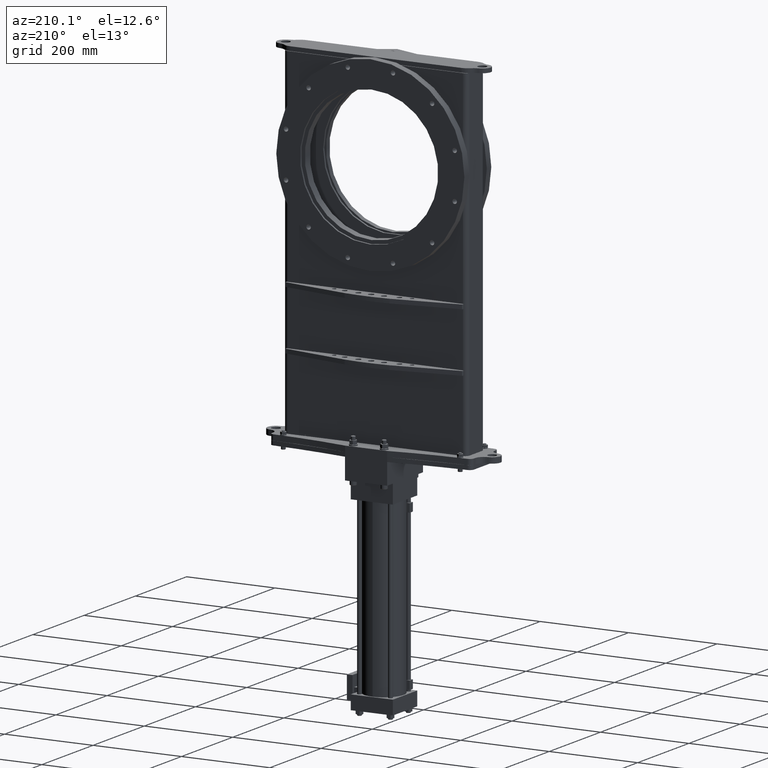
[diagram: clean part render]
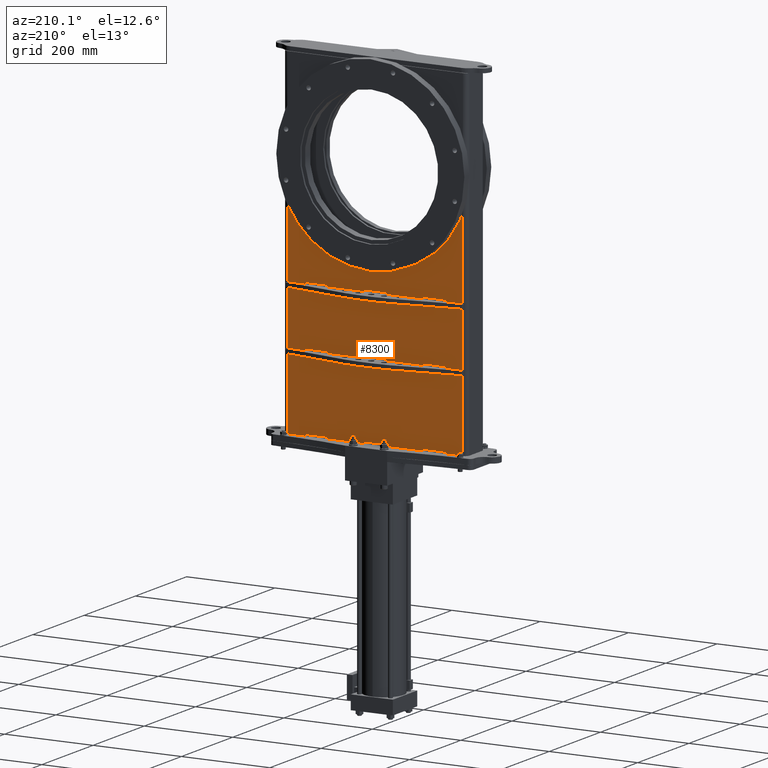
[diagram: same view with one face highlighted and labeled with its STEP entity id]
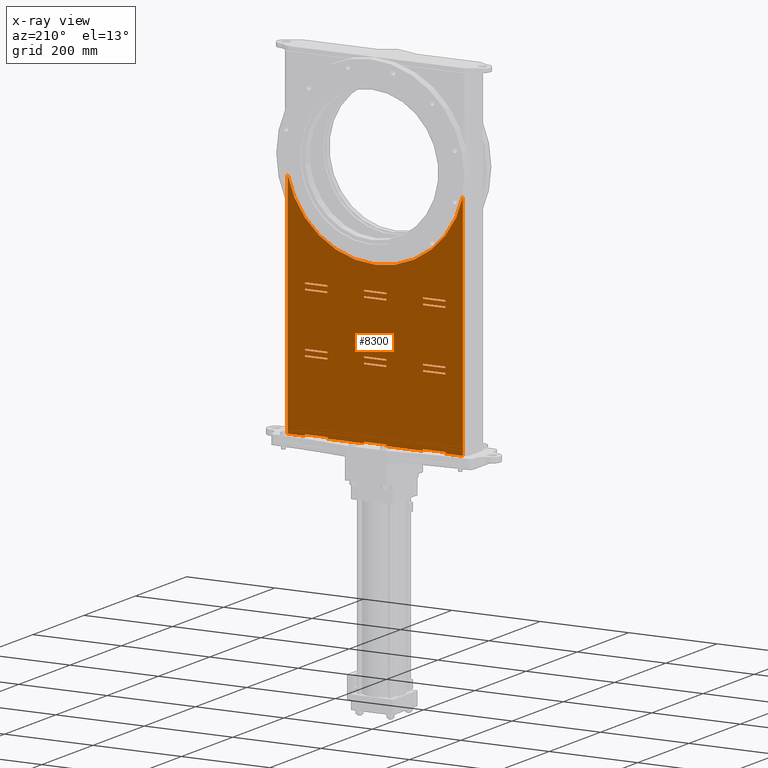
[diagram: x-ray of the same camera — body ghosted, the highlighted face saturated]
A machine part, auxiliary view. The second image highlights one B-rep face of the part: STEP entity #8300.
The next image is the same camera in x-ray: the body ghosted, the highlighted face saturated — about 0% of this face is hidden behind the body in this view.
In plain terms, the highlighted planar face has unit normal (0, -1, 0).
Its self-contained STEP definition (entity closure, byte-faithful):
#117 = VECTOR ( 'NONE', #12557, 39.37007874015748100 ) ;
#125 = EDGE_CURVE ( 'NONE', #15869, #6076, #1041, .T. ) ;
#191 = EDGE_CURVE ( 'NONE', #6166, #7435, #11773, .T. ) ;
#196 = DIRECTION ( 'NONE',  ( 1.000000000000000000, -0.0000000000000000000, 0.0000000000000000000 ) ) ;
#215 = PLANE ( 'NONE',  #24419 ) ;
#243 = EDGE_CURVE ( 'NONE', #10395, #24396, #17137, .T. ) ;
#276 = EDGE_CURVE ( 'NONE', #8509, #25032, #10188, .T. ) ;
#301 = VERTEX_POINT ( 'NONE', #19083 ) ;
#323 = LINE ( 'NONE', #25758, #17695 ) ;
#389 = CARTESIAN_POINT ( 'NONE',  ( 4.249999999999999100, -0.4376000000000041000, -1.859999999999999200 ) ) ;
#412 = FACE_BOUND ( 'NONE', #5181, .T. ) ;
#447 = CARTESIAN_POINT ( 'NONE',  ( -6.206000441006788100E-016, -0.4376000000000041000, -10.71999999999999900 ) ) ;
#464 = CARTESIAN_POINT ( 'NONE',  ( 4.249999999999999100, -0.4376000000000041000, -10.71999999999999900 ) ) ;
#543 = LINE ( 'NONE', #16256, #9052 ) ;
#566 = LINE ( 'NONE', #3291, #18547 ) ;
#599 = CARTESIAN_POINT ( 'NONE',  ( -5.932625053149104600E-017, -0.4376000000000039900, -15.34499999999999500 ) ) ;
#681 = VERTEX_POINT ( 'NONE', #8884 ) ;
#699 = CARTESIAN_POINT ( 'NONE',  ( 4.249999999999998200, -0.4376000000000039900, -15.84499999999999900 ) ) ;
#729 = CARTESIAN_POINT ( 'NONE',  ( 0.9999999999999992200, -0.4376000000000039900, -10.59499999999999700 ) ) ;
#1006 = ORIENTED_EDGE ( 'NONE', *, *, #12178, .T. ) ;
#1041 = LINE ( 'NONE', #8496, #22470 ) ;
#1165 = EDGE_CURVE ( 'NONE', #23593, #21594, #18341, .T. ) ;
#1229 = LINE ( 'NONE', #2977, #23595 ) ;
#1318 = ORIENTED_EDGE ( 'NONE', *, *, #191, .F. ) ;
#1367 = LINE ( 'NONE', #5889, #15263 ) ;
#1427 = VECTOR ( 'NONE', #2709, 39.37007874015748100 ) ;
#1504 = EDGE_CURVE ( 'NONE', #16864, #12687, #10121, .T. ) ;
#1516 = ORIENTED_EDGE ( 'NONE', *, *, #10866, .F. ) ;
#1528 = CARTESIAN_POINT ( 'NONE',  ( -5.932625053149104600E-017, -0.4376000000000039900, -15.84499999999999700 ) ) ;
#1557 = LINE ( 'NONE', #5980, #6622 ) ;
#1594 = EDGE_CURVE ( 'NONE', #23845, #16864, #4767, .T. ) ;
#1607 = CARTESIAN_POINT ( 'NONE',  ( 1.000000000000000000, -0.4376000000000039900, -15.96999999999999900 ) ) ;
#1669 = ORIENTED_EDGE ( 'NONE', *, *, #3524, .F. ) ;
#1705 = CARTESIAN_POINT ( 'NONE',  ( 6.249999999999999100, -0.4376000000000039900, -10.09499999999999500 ) ) ;
#1716 = VERTEX_POINT ( 'NONE', #16973 ) ;
#1841 = LINE ( 'NONE', #17411, #26088 ) ;
#1860 = VECTOR ( 'NONE', #2690, 39.37007874015748100 ) ;
#1907 = EDGE_CURVE ( 'NONE', #25324, #4437, #24894, .T. ) ;
#1915 = CARTESIAN_POINT ( 'NONE',  ( -1.000000000000000000, -0.4376000000000039900, -13.85999999999999900 ) ) ;
#1922 = CARTESIAN_POINT ( 'NONE',  ( -1.000000000000000000, -0.4376000000000039900, -7.109999999999999400 ) ) ;
#1935 = LINE ( 'NONE', #24238, #16774 ) ;
#1940 = EDGE_CURVE ( 'NONE', #17908, #6076, #3481, .T. ) ;
#1957 = CARTESIAN_POINT ( 'NONE',  ( 4.250000000000000000, -0.4376000000000039900, -15.34499999999999500 ) ) ;
#1982 = CARTESIAN_POINT ( 'NONE',  ( -7.799999999999999800, -0.4376000000000039900, 8.000000000000000000 ) ) ;
#2159 = DIRECTION ( 'NONE',  ( 0.0000000000000000000, 0.0000000000000000000, -1.000000000000000000 ) ) ;
#2196 = EDGE_LOOP ( 'NONE', ( #25806, #11156, #12347, #18559 ) ) ;
#2396 = CARTESIAN_POINT ( 'NONE',  ( -7.799999999999999800, -0.4376000000000039900, -22.21999999999999500 ) ) ;
#2417 = CARTESIAN_POINT ( 'NONE',  ( -1.000000000000000400, -0.4376000000000041000, -1.859999999999999200 ) ) ;
#2502 = ORIENTED_EDGE ( 'NONE', *, *, #7565, .F. ) ;
#2521 = VECTOR ( 'NONE', #9305, 39.37007874015748100 ) ;
#2544 = DIRECTION ( 'NONE',  ( 1.000000000000000000, -0.0000000000000000000, 0.0000000000000000000 ) ) ;
#2580 = CARTESIAN_POINT ( 'NONE',  ( -6.250000000000000000, -0.4376000000000039900, -15.46999999999999700 ) ) ;
#2650 = ORIENTED_EDGE ( 'NONE', *, *, #19316, .T. ) ;
#2667 = ORIENTED_EDGE ( 'NONE', *, *, #25369, .F. ) ;
#2690 = DIRECTION ( 'NONE',  ( 1.000000000000000000, -0.0000000000000000000, 0.0000000000000000000 ) ) ;
#2702 = VECTOR ( 'NONE', #8623, 39.37007874015748100 ) ;
#2705 = VERTEX_POINT ( 'NONE', #19362 ) ;
#2709 = DIRECTION ( 'NONE',  ( 1.000000000000000000, -0.0000000000000000000, 0.0000000000000000000 ) ) ;
#2748 = ORIENTED_EDGE ( 'NONE', *, *, #15088, .F. ) ;
#2751 = LINE ( 'NONE', #19834, #17899 ) ;
#2977 = CARTESIAN_POINT ( 'NONE',  ( 0.9999999999999994400, -0.4376000000000041000, -1.859999999999999200 ) ) ;
#3106 = EDGE_CURVE ( 'NONE', #6264, #15277, #19510, .T. ) ;
#3157 = VERTEX_POINT ( 'NONE', #4802 ) ;
#3164 = ORIENTED_EDGE ( 'NONE', *, *, #4753, .T. ) ;
#3198 = LINE ( 'NONE', #11958, #15838 ) ;
#3233 = CARTESIAN_POINT ( 'NONE',  ( -1.000000000000000000, -0.4376000000000039900, -15.34499999999999500 ) ) ;
#3245 = FACE_BOUND ( 'NONE', #7197, .T. ) ;
#3258 = CARTESIAN_POINT ( 'NONE',  ( -6.250000000000000000, -0.4376000000000039900, -22.09499999999999900 ) ) ;
#3278 = EDGE_CURVE ( 'NONE', #19125, #12229, #25459, .T. ) ;
#3291 = CARTESIAN_POINT ( 'NONE',  ( -6.250000000000001800, -0.4376000000000041000, -1.859999999999999200 ) ) ;
#3348 = CARTESIAN_POINT ( 'NONE',  ( 4.249999999999999100, -0.4376000000000041000, -10.21999999999999700 ) ) ;
#3399 = LINE ( 'NONE', #9550, #21370 ) ;
#3455 = EDGE_CURVE ( 'NONE', #10861, #21594, #3399, .T. ) ;
#3481 = LINE ( 'NONE', #2396, #8188 ) ;
#3490 = EDGE_CURVE ( 'NONE', #14231, #14218, #11297, .T. ) ;
#3524 = EDGE_CURVE ( 'NONE', #5026, #15869, #23560, .T. ) ;
#3636 = EDGE_CURVE ( 'NONE', #8708, #7435, #9381, .T. ) ;
#3682 = DIRECTION ( 'NONE',  ( 0.0000000000000000000, 0.0000000000000000000, -1.000000000000000000 ) ) ;
#3691 = VERTEX_POINT ( 'NONE', #1705 ) ;
#3731 = DIRECTION ( 'NONE',  ( -1.000000000000000000, -0.0000000000000000000, -0.0000000000000000000 ) ) ;
#3837 = CARTESIAN_POINT ( 'NONE',  ( -5.932625053149104600E-017, -0.4376000000000039900, 0.0000000000000000000 ) ) ;
#3871 = CARTESIAN_POINT ( 'NONE',  ( -4.250000000000000000, -0.4376000000000039900, -15.96999999999999900 ) ) ;
#3982 = EDGE_LOOP ( 'NONE', ( #19966, #24036, #6713, #11410 ) ) ;
#4003 = LINE ( 'NONE', #447, #19453 ) ;
#4050 = DIRECTION ( 'NONE',  ( 0.0000000000000000000, 0.0000000000000000000, -1.000000000000000000 ) ) ;
#4079 = EDGE_CURVE ( 'NONE', #6605, #7465, #11612, .T. ) ;
#4103 = ORIENTED_EDGE ( 'NONE', *, *, #21117, .F. ) ;
#4135 = VECTOR ( 'NONE', #24592, 39.37007874015748100 ) ;
#4255 = EDGE_CURVE ( 'NONE', #22049, #7453, #20739, .T. ) ;
#4308 = ORIENTED_EDGE ( 'NONE', *, *, #4313, .F. ) ;
#4313 = EDGE_CURVE ( 'NONE', #14218, #7453, #22316, .T. ) ;
#4359 = EDGE_CURVE ( 'NONE', #7980, #19125, #16974, .T. ) ;
#4398 = EDGE_CURVE ( 'NONE', #18685, #24396, #18521, .T. ) ;
#4400 = CARTESIAN_POINT ( 'NONE',  ( 6.250000000000000000, -0.4376000000000039900, -15.84499999999999700 ) ) ;
#4408 = EDGE_CURVE ( 'NONE', #15700, #13568, #16009, .T. ) ;
#4437 = VERTEX_POINT ( 'NONE', #14983 ) ;
#4443 = DIRECTION ( 'NONE',  ( 0.0000000000000000000, 0.0000000000000000000, -1.000000000000000000 ) ) ;
#4499 = DIRECTION ( 'NONE',  ( 1.000000000000000000, -0.0000000000000000000, 0.0000000000000000000 ) ) ;
#4538 = CARTESIAN_POINT ( 'NONE',  ( -1.000000000000000000, -0.4376000000000039900, -15.46999999999999700 ) ) ;
#4579 = LINE ( 'NONE', #13133, #15022 ) ;
#4590 = CARTESIAN_POINT ( 'NONE',  ( 1.000000000000000000, -0.4376000000000039900, -7.109999999999999400 ) ) ;
#4602 = EDGE_LOOP ( 'NONE', ( #16734, #19374, #16870, #11347, #15020, #22030, #2502, #12605, #23417, #7796, #1318, #12145, #1006, #17830, #13463, #1669 ) ) ;
#4603 = LINE ( 'NONE', #21567, #9324 ) ;
#4629 = DIRECTION ( 'NONE',  ( 0.0000000000000000000, 0.0000000000000000000, -1.000000000000000000 ) ) ;
#4711 = CARTESIAN_POINT ( 'NONE',  ( -1.000000000000000400, -0.4376000000000041000, -10.21999999999999700 ) ) ;
#4753 = EDGE_CURVE ( 'NONE', #13622, #6969, #4003, .T. ) ;
#4767 = LINE ( 'NONE', #2417, #21475 ) ;
#4802 = CARTESIAN_POINT ( 'NONE',  ( -4.250000000000000000, -0.4376000000000039900, -15.84499999999999700 ) ) ;
#4820 = DIRECTION ( 'NONE',  ( 1.000000000000000000, -0.0000000000000000000, 0.0000000000000000000 ) ) ;
#4824 = CARTESIAN_POINT ( 'NONE',  ( 4.249999999999999100, -0.4376000000000041000, -10.09499999999999500 ) ) ;
#4872 = CARTESIAN_POINT ( 'NONE',  ( -4.250000000000000000, -0.4376000000000041000, -1.859999999999999200 ) ) ;
#4896 = DIRECTION ( 'NONE',  ( -1.000000000000000000, -0.0000000000000000000, -0.0000000000000000000 ) ) ;
#4920 = DIRECTION ( 'NONE',  ( 1.000000000000000000, -0.0000000000000000000, 0.0000000000000000000 ) ) ;
#4960 = LINE ( 'NONE', #13936, #19482 ) ;
#5026 = VERTEX_POINT ( 'NONE', #3258 ) ;
#5051 = CARTESIAN_POINT ( 'NONE',  ( -7.799999999999999800, -0.4376000000000039900, -22.21999999999999500 ) ) ;
#5052 = LINE ( 'NONE', #15937, #5690 ) ;
#5181 = EDGE_LOOP ( 'NONE', ( #10955, #18097, #2650, #13233 ) ) ;
#5235 = LINE ( 'NONE', #16181, #17879 ) ;
#5359 = DIRECTION ( 'NONE',  ( 1.000000000000000000, -0.0000000000000000000, 0.0000000000000000000 ) ) ;
#5384 = ORIENTED_EDGE ( 'NONE', *, *, #11090, .T. ) ;
#5402 = LINE ( 'NONE', #1915, #13306 ) ;
#5417 = CARTESIAN_POINT ( 'NONE',  ( -1.000000000000000000, -0.4376000000000039900, -7.109999999999999400 ) ) ;
#5468 = LINE ( 'NONE', #8572, #117 ) ;
#5492 = CARTESIAN_POINT ( 'NONE',  ( -5.932625053149104600E-017, -0.4376000000000039900, -22.09499999999999900 ) ) ;
#5690 = VECTOR ( 'NONE', #23846, 39.37007874015748100 ) ;
#5763 = EDGE_CURVE ( 'NONE', #10787, #13672, #15362, .T. ) ;
#5775 = FACE_BOUND ( 'NONE', #2196, .T. ) ;
#5787 = CARTESIAN_POINT ( 'NONE',  ( 7.799999999999998000, -0.4376000000000042100, -1.777638883463128300 ) ) ;
#5837 = LINE ( 'NONE', #14949, #21249 ) ;
#5889 = CARTESIAN_POINT ( 'NONE',  ( 6.249999999999999100, -0.4376000000000041000, -1.859999999999999200 ) ) ;
#5952 = DIRECTION ( 'NONE',  ( -1.000000000000000000, 3.414809992080329000E-017, 0.0000000000000000000 ) ) ;
#5977 = CARTESIAN_POINT ( 'NONE',  ( -7.799999999999999800, -0.4376000000000039900, -22.21999999999999500 ) ) ;
#5980 = CARTESIAN_POINT ( 'NONE',  ( -6.250000000000000000, -0.4376000000000039900, -7.109999999999999400 ) ) ;
#5993 = EDGE_CURVE ( 'NONE', #3691, #12229, #18159, .T. ) ;
#6073 = ORIENTED_EDGE ( 'NONE', *, *, #21075, .F. ) ;
#6076 = VERTEX_POINT ( 'NONE', #25269 ) ;
#6166 = VERTEX_POINT ( 'NONE', #15028 ) ;
#6189 = DIRECTION ( 'NONE',  ( 0.0000000000000000000, 0.0000000000000000000, -1.000000000000000000 ) ) ;
#6201 = CARTESIAN_POINT ( 'NONE',  ( 1.000000000000000000, -0.4376000000000039900, -15.46999999999999700 ) ) ;
#6228 = VECTOR ( 'NONE', #25870, 39.37007874015748100 ) ;
#6243 = CARTESIAN_POINT ( 'NONE',  ( 6.250000000000000000, -0.4376000000000039900, -7.109999999999999400 ) ) ;
#6250 = VECTOR ( 'NONE', #17146, 39.37007874015748100 ) ;
#6264 = VERTEX_POINT ( 'NONE', #13432 ) ;
#6388 = DIRECTION ( 'NONE',  ( 0.0000000000000000000, 0.0000000000000000000, -1.000000000000000000 ) ) ;
#6470 = CARTESIAN_POINT ( 'NONE',  ( 6.249999999999999100, -0.4376000000000041000, -10.71999999999999900 ) ) ;
#6507 = DIRECTION ( 'NONE',  ( 0.0000000000000000000, 0.0000000000000000000, -1.000000000000000000 ) ) ;
#6513 = CARTESIAN_POINT ( 'NONE',  ( 6.250000000000000000, -0.4376000000000039900, -22.21999999999999500 ) ) ;
#6516 = CARTESIAN_POINT ( 'NONE',  ( -6.250000000000000000, -0.4376000000000039900, -13.85999999999999900 ) ) ;
#6527 = VECTOR ( 'NONE', #9199, 39.37007874015748100 ) ;
#6563 = CARTESIAN_POINT ( 'NONE',  ( -6.250000000000001800, -0.4376000000000041000, -1.859999999999999200 ) ) ;
#6605 = VERTEX_POINT ( 'NONE', #3233 ) ;
#6622 = VECTOR ( 'NONE', #4050, 39.37007874015748100 ) ;
#6659 = CARTESIAN_POINT ( 'NONE',  ( -4.250000000000000000, -0.4376000000000041000, -10.21999999999999700 ) ) ;
#6677 = CARTESIAN_POINT ( 'NONE',  ( -1.000000000000000000, -0.4376000000000039900, -15.84499999999999700 ) ) ;
#6680 = DIRECTION ( 'NONE',  ( 1.000000000000000000, -0.0000000000000000000, 0.0000000000000000000 ) ) ;
#6713 = ORIENTED_EDGE ( 'NONE', *, *, #24442, .T. ) ;
#6755 = VERTEX_POINT ( 'NONE', #7800 ) ;
#6781 = CARTESIAN_POINT ( 'NONE',  ( -7.799999999999999800, -0.4376000000000039900, 8.000000000000000000 ) ) ;
#6783 = CARTESIAN_POINT ( 'NONE',  ( 4.250000000000000000, -0.4376000000000039900, -7.109999999999999400 ) ) ;
#6870 = VECTOR ( 'NONE', #3731, 39.37007874015748100 ) ;
#6897 = CARTESIAN_POINT ( 'NONE',  ( 1.000000000000000200, -0.4376000000000039900, -15.84499999999999900 ) ) ;
#6960 = EDGE_CURVE ( 'NONE', #15711, #6755, #5837, .T. ) ;
#6969 = VERTEX_POINT ( 'NONE', #6470 ) ;
#7018 = CARTESIAN_POINT ( 'NONE',  ( -7.799999999999999800, -0.4376000000000039900, -22.21999999999999500 ) ) ;
#7197 = EDGE_LOOP ( 'NONE', ( #7474, #6073, #19803, #7247 ) ) ;
#7247 = ORIENTED_EDGE ( 'NONE', *, *, #1165, .T. ) ;
#7319 = ORIENTED_EDGE ( 'NONE', *, *, #15968, .T. ) ;
#7335 = FACE_BOUND ( 'NONE', #13758, .T. ) ;
#7337 = DIRECTION ( 'NONE',  ( 0.0000000000000000000, 0.0000000000000000000, -1.000000000000000000 ) ) ;
#7349 = VECTOR ( 'NONE', #4629, 39.37007874015748100 ) ;
#7435 = VERTEX_POINT ( 'NONE', #14404 ) ;
#7453 = VERTEX_POINT ( 'NONE', #15008 ) ;
#7462 = LINE ( 'NONE', #5417, #17273 ) ;
#7465 = VERTEX_POINT ( 'NONE', #24836 ) ;
#7474 = ORIENTED_EDGE ( 'NONE', *, *, #3455, .F. ) ;
#7565 = EDGE_CURVE ( 'NONE', #17621, #15277, #17805, .T. ) ;
#7604 = DIRECTION ( 'NONE',  ( 0.0000000000000000000, 0.0000000000000000000, -1.000000000000000000 ) ) ;
#7704 = DIRECTION ( 'NONE',  ( 1.000000000000000000, -0.0000000000000000000, 0.0000000000000000000 ) ) ;
#7728 = CARTESIAN_POINT ( 'NONE',  ( 6.250000000000000000, -0.4376000000000039900, -22.09499999999999900 ) ) ;
#7796 = ORIENTED_EDGE ( 'NONE', *, *, #3636, .T. ) ;
#7800 = CARTESIAN_POINT ( 'NONE',  ( -4.250000000000000000, -0.4376000000000041000, -10.59499999999999700 ) ) ;
#7896 = EDGE_LOOP ( 'NONE', ( #15675, #13068, #4308, #25938 ) ) ;
#7980 = VERTEX_POINT ( 'NONE', #4824 ) ;
#8016 = VECTOR ( 'NONE', #10941, 39.37007874015748100 ) ;
#8036 = DIRECTION ( 'NONE',  ( -1.000000000000000000, -0.0000000000000000000, -0.0000000000000000000 ) ) ;
#8160 = CARTESIAN_POINT ( 'NONE',  ( 4.250000000000000000, -0.4376000000000039900, -22.09499999999999900 ) ) ;
#8166 = VECTOR ( 'NONE', #12064, 39.37007874015748100 ) ;
#8188 = VECTOR ( 'NONE', #8036, 39.37007874015748100 ) ;
#8226 = LINE ( 'NONE', #22088, #23371 ) ;
#8230 = ORIENTED_EDGE ( 'NONE', *, *, #12166, .T. ) ;
#8247 = DIRECTION ( 'NONE',  ( 0.0000000000000000000, 0.0000000000000000000, -1.000000000000000000 ) ) ;
#8300 = ADVANCED_FACE ( 'NONE', ( #11455, #10176, #16514, #11142, #7335, #5775, #9225, #412, #21218, #3245, #13347, #10501, #25922 ), #215, .F. ) ;
#8427 = CARTESIAN_POINT ( 'NONE',  ( 4.249999999999999100, -0.4376000000000041000, -1.859999999999999200 ) ) ;
#8496 = CARTESIAN_POINT ( 'NONE',  ( -4.250000000000000000, -0.4376000000000039900, -13.85999999999999900 ) ) ;
#8509 = VERTEX_POINT ( 'NONE', #6897 ) ;
#8572 = CARTESIAN_POINT ( 'NONE',  ( -6.206000441006788100E-016, -0.4376000000000041000, -10.21999999999999700 ) ) ;
#8584 = CARTESIAN_POINT ( 'NONE',  ( -6.250000000000001800, -0.4376000000000039900, -10.59499999999999700 ) ) ;
#8618 = ORIENTED_EDGE ( 'NONE', *, *, #6960, .F. ) ;
#8623 = DIRECTION ( 'NONE',  ( 0.0000000000000000000, 0.0000000000000000000, -1.000000000000000000 ) ) ;
#8708 = VERTEX_POINT ( 'NONE', #12075 ) ;
#8795 = CARTESIAN_POINT ( 'NONE',  ( -6.206000441006788100E-016, -0.4376000000000041000, -10.59499999999999700 ) ) ;
#8857 = DIRECTION ( 'NONE',  ( 1.000000000000000000, -0.0000000000000000000, 0.0000000000000000000 ) ) ;
#8884 = CARTESIAN_POINT ( 'NONE',  ( -1.000000000000000000, -0.4376000000000039900, -15.96999999999999900 ) ) ;
#8897 = LINE ( 'NONE', #25867, #15551 ) ;
#8978 = LINE ( 'NONE', #6516, #2702 ) ;
#9038 = CARTESIAN_POINT ( 'NONE',  ( -5.932625053149104600E-017, -0.4376000000000039900, -15.46999999999999700 ) ) ;
#9052 = VECTOR ( 'NONE', #4499, 39.37007874015748100 ) ;
#9199 = DIRECTION ( 'NONE',  ( 1.000000000000000000, -0.0000000000000000000, 0.0000000000000000000 ) ) ;
#9201 = LINE ( 'NONE', #8795, #24021 ) ;
#9225 = FACE_BOUND ( 'NONE', #7896, .T. ) ;
#9303 = EDGE_CURVE ( 'NONE', #20792, #8708, #1935, .T. ) ;
#9305 = DIRECTION ( 'NONE',  ( 0.0000000000000000000, 0.0000000000000000000, -1.000000000000000000 ) ) ;
#9324 = VECTOR ( 'NONE', #9669, 39.37007874015748100 ) ;
#9330 = CARTESIAN_POINT ( 'NONE',  ( 6.250000000000000000, -0.4376000000000039900, -13.85999999999999900 ) ) ;
#9355 = LINE ( 'NONE', #11425, #6527 ) ;
#9381 = LINE ( 'NONE', #17937, #6870 ) ;
#9550 = CARTESIAN_POINT ( 'NONE',  ( 0.9999999999999994400, -0.4376000000000041000, -1.859999999999999200 ) ) ;
#9601 = CARTESIAN_POINT ( 'NONE',  ( -5.932625053149104600E-017, -0.4376000000000039900, -15.34499999999999500 ) ) ;
#9669 = DIRECTION ( 'NONE',  ( 1.000000000000000000, -0.0000000000000000000, 0.0000000000000000000 ) ) ;
#9858 = VERTEX_POINT ( 'NONE', #6677 ) ;
#9922 = EDGE_CURVE ( 'NONE', #20784, #23593, #23031, .T. ) ;
#10121 = LINE ( 'NONE', #20297, #4135 ) ;
#10162 = ORIENTED_EDGE ( 'NONE', *, *, #17515, .F. ) ;
#10176 = FACE_BOUND ( 'NONE', #13879, .T. ) ;
#10188 = LINE ( 'NONE', #13103, #25615 ) ;
#10279 = ORIENTED_EDGE ( 'NONE', *, *, #3278, .T. ) ;
#10356 = EDGE_LOOP ( 'NONE', ( #1516, #10162, #18395, #16716 ) ) ;
#10372 = CARTESIAN_POINT ( 'NONE',  ( -1.000000000000000000, -0.4376000000000039900, -22.21999999999999500 ) ) ;
#10383 = CARTESIAN_POINT ( 'NONE',  ( -5.932625053149104600E-017, -0.4376000000000039900, -15.96999999999999900 ) ) ;
#10395 = VERTEX_POINT ( 'NONE', #18995 ) ;
#10416 = DIRECTION ( 'NONE',  ( 1.000000000000000000, -0.0000000000000000000, 0.0000000000000000000 ) ) ;
#10473 = DIRECTION ( 'NONE',  ( 1.000000000000000000, -0.0000000000000000000, 0.0000000000000000000 ) ) ;
#10477 = LINE ( 'NONE', #16985, #23724 ) ;
#10501 = FACE_BOUND ( 'NONE', #11305, .T. ) ;
#10530 = LINE ( 'NONE', #15526, #13705 ) ;
#10721 = CARTESIAN_POINT ( 'NONE',  ( -6.206000441006788100E-016, -0.4376000000000041000, -10.59499999999999700 ) ) ;
#10738 = DIRECTION ( 'NONE',  ( -0.0000000000000000000, -0.0000000000000000000, -1.000000000000000000 ) ) ;
#10787 = VERTEX_POINT ( 'NONE', #14492 ) ;
#10833 = CARTESIAN_POINT ( 'NONE',  ( -6.206000441006788100E-016, -0.4376000000000041000, -10.71999999999999900 ) ) ;
#10861 = VERTEX_POINT ( 'NONE', #729 ) ;
#10866 = EDGE_CURVE ( 'NONE', #14506, #12687, #1229, .T. ) ;
#10882 = DIRECTION ( 'NONE',  ( 1.000000000000000000, -0.0000000000000000000, 0.0000000000000000000 ) ) ;
#10941 = DIRECTION ( 'NONE',  ( 0.0000000000000000000, 0.0000000000000000000, -1.000000000000000000 ) ) ;
#10955 = ORIENTED_EDGE ( 'NONE', *, *, #24653, .F. ) ;
#11044 = CARTESIAN_POINT ( 'NONE',  ( 0.9999999999999994400, -0.4376000000000041000, -10.71999999999999900 ) ) ;
#11090 = EDGE_CURVE ( 'NONE', #15711, #23135, #566, .T. ) ;
#11120 = EDGE_CURVE ( 'NONE', #3157, #11684, #1841, .T. ) ;
#11142 = FACE_BOUND ( 'NONE', #3982, .T. ) ;
#11156 = ORIENTED_EDGE ( 'NONE', *, *, #21354, .F. ) ;
#11259 = CARTESIAN_POINT ( 'NONE',  ( -7.799999999999999800, -0.4376000000000039900, -1.777638883463122700 ) ) ;
#11281 = EDGE_CURVE ( 'NONE', #7980, #3691, #543, .T. ) ;
#11297 = LINE ( 'NONE', #1528, #24189 ) ;
#11305 = EDGE_LOOP ( 'NONE', ( #14915, #12632, #25453, #22392 ) ) ;
#11347 = ORIENTED_EDGE ( 'NONE', *, *, #23770, .T. ) ;
#11358 = VERTEX_POINT ( 'NONE', #16338 ) ;
#11410 = ORIENTED_EDGE ( 'NONE', *, *, #23774, .T. ) ;
#11425 = CARTESIAN_POINT ( 'NONE',  ( -5.932625053149104600E-017, -0.4376000000000039900, -15.84499999999999700 ) ) ;
#11455 = FACE_BOUND ( 'NONE', #23071, .T. ) ;
#11498 = CARTESIAN_POINT ( 'NONE',  ( -6.206000441006788100E-016, -0.4376000000000041000, -10.21999999999999700 ) ) ;
#11612 = LINE ( 'NONE', #9601, #6228 ) ;
#11684 = VERTEX_POINT ( 'NONE', #3871 ) ;
#11761 = DIRECTION ( 'NONE',  ( 0.0000000000000000000, 0.0000000000000000000, -1.000000000000000000 ) ) ;
#11773 = LINE ( 'NONE', #16724, #7349 ) ;
#11804 = CARTESIAN_POINT ( 'NONE',  ( -1.000000000000000400, -0.4376000000000041000, -10.59499999999999700 ) ) ;
#11958 = CARTESIAN_POINT ( 'NONE',  ( -4.250000000000000000, -0.4376000000000039900, -7.109999999999999400 ) ) ;
#12026 = VERTEX_POINT ( 'NONE', #5787 ) ;
#12064 = DIRECTION ( 'NONE',  ( -0.0000000000000000000, -0.0000000000000000000, -1.000000000000000000 ) ) ;
#12075 = CARTESIAN_POINT ( 'NONE',  ( 4.250000000000000000, -0.4376000000000039900, -22.21999999999999500 ) ) ;
#12110 = CARTESIAN_POINT ( 'NONE',  ( 4.249999999999998200, -0.4376000000000039900, -10.59499999999999700 ) ) ;
#12116 = DIRECTION ( 'NONE',  ( 0.0000000000000000000, -0.0000000000000000000, -1.000000000000000000 ) ) ;
#12145 = ORIENTED_EDGE ( 'NONE', *, *, #15469, .F. ) ;
#12166 = EDGE_CURVE ( 'NONE', #17342, #1716, #8226, .T. ) ;
#12178 = EDGE_CURVE ( 'NONE', #14810, #17908, #5402, .T. ) ;
#12229 = VERTEX_POINT ( 'NONE', #18551 ) ;
#12253 = VECTOR ( 'NONE', #2544, 39.37007874015748100 ) ;
#12273 = VERTEX_POINT ( 'NONE', #6659 ) ;
#12275 = CARTESIAN_POINT ( 'NONE',  ( -5.932625053149104600E-017, -0.4376000000000039900, -15.46999999999999700 ) ) ;
#12347 = ORIENTED_EDGE ( 'NONE', *, *, #21108, .T. ) ;
#12557 = DIRECTION ( 'NONE',  ( 1.000000000000000000, -0.0000000000000000000, 0.0000000000000000000 ) ) ;
#12605 = ORIENTED_EDGE ( 'NONE', *, *, #13106, .F. ) ;
#12632 = ORIENTED_EDGE ( 'NONE', *, *, #5763, .F. ) ;
#12649 = VECTOR ( 'NONE', #20590, 39.37007874015748100 ) ;
#12687 = VERTEX_POINT ( 'NONE', #22719 ) ;
#12727 = VECTOR ( 'NONE', #4896, 39.37007874015748100 ) ;
#12752 = EDGE_CURVE ( 'NONE', #25185, #25357, #21158, .T. ) ;
#12846 = DIRECTION ( 'NONE',  ( 0.0000000000000000000, 0.0000000000000000000, -1.000000000000000000 ) ) ;
#12928 = ORIENTED_EDGE ( 'NONE', *, *, #16735, .T. ) ;
#13068 = ORIENTED_EDGE ( 'NONE', *, *, #4255, .T. ) ;
#13077 = EDGE_CURVE ( 'NONE', #14231, #22049, #5052, .T. ) ;
#13103 = CARTESIAN_POINT ( 'NONE',  ( 1.000000000000000000, -0.4376000000000039900, -7.109999999999999400 ) ) ;
#13106 = EDGE_CURVE ( 'NONE', #20792, #17621, #323, .T. ) ;
#13133 = CARTESIAN_POINT ( 'NONE',  ( -5.932625053149104600E-017, -0.4376000000000039900, -15.96999999999999900 ) ) ;
#13233 = ORIENTED_EDGE ( 'NONE', *, *, #1907, .T. ) ;
#13239 = LINE ( 'NONE', #4872, #18263 ) ;
#13306 = VECTOR ( 'NONE', #20306, 39.37007874015748100 ) ;
#13347 = FACE_BOUND ( 'NONE', #13628, .T. ) ;
#13432 = CARTESIAN_POINT ( 'NONE',  ( 7.799999999999999800, -0.4376000000000038200, -22.21999999999999500 ) ) ;
#13463 = ORIENTED_EDGE ( 'NONE', *, *, #125, .F. ) ;
#13484 = CARTESIAN_POINT ( 'NONE',  ( 0.9999999999999992200, -0.4376000000000039900, -10.09499999999999500 ) ) ;
#13562 = CARTESIAN_POINT ( 'NONE',  ( -1.000000000000000400, -0.4376000000000041000, -1.859999999999999200 ) ) ;
#13568 = VERTEX_POINT ( 'NONE', #6201 ) ;
#13622 = VERTEX_POINT ( 'NONE', #464 ) ;
#13628 = EDGE_LOOP ( 'NONE', ( #12928, #3164, #22968, #17140 ) ) ;
#13672 = VERTEX_POINT ( 'NONE', #14579 ) ;
#13705 = VECTOR ( 'NONE', #5359, 39.37007874015748100 ) ;
#13748 = EDGE_CURVE ( 'NONE', #13672, #12273, #13239, .T. ) ;
#13753 = DIRECTION ( 'NONE',  ( 1.000000000000000000, -0.0000000000000000000, 0.0000000000000000000 ) ) ;
#13758 = EDGE_LOOP ( 'NONE', ( #2667, #22750, #24989, #16962 ) ) ;
#13820 = VECTOR ( 'NONE', #6680, 39.37007874015748100 ) ;
#13824 = CARTESIAN_POINT ( 'NONE',  ( -1.000000000000000400, -0.4376000000000041000, -10.09499999999999500 ) ) ;
#13872 = DIRECTION ( 'NONE',  ( 0.0000000000000000000, 0.0000000000000000000, -1.000000000000000000 ) ) ;
#13879 = EDGE_LOOP ( 'NONE', ( #25764, #21833, #15969, #10279 ) ) ;
#13936 = CARTESIAN_POINT ( 'NONE',  ( 6.250000000000000000, -0.4376000000000039900, -7.109999999999999400 ) ) ;
#14044 = VECTOR ( 'NONE', #2159, 39.37007874015748100 ) ;
#14155 = DIRECTION ( 'NONE',  ( 0.0000000000000000000, 0.0000000000000000000, -1.000000000000000000 ) ) ;
#14218 = VERTEX_POINT ( 'NONE', #4400 ) ;
#14231 = VERTEX_POINT ( 'NONE', #699 ) ;
#14279 = CARTESIAN_POINT ( 'NONE',  ( 6.249999999999999100, -0.4376000000000041000, -10.59499999999999700 ) ) ;
#14404 = CARTESIAN_POINT ( 'NONE',  ( 1.000000000000000000, -0.4376000000000039900, -22.21999999999999500 ) ) ;
#14492 = CARTESIAN_POINT ( 'NONE',  ( -6.250000000000001800, -0.4376000000000041000, -10.09499999999999500 ) ) ;
#14506 = VERTEX_POINT ( 'NONE', #13484 ) ;
#14579 = CARTESIAN_POINT ( 'NONE',  ( -4.250000000000000000, -0.4376000000000039900, -10.09499999999999500 ) ) ;
#14684 = VERTEX_POINT ( 'NONE', #22664 ) ;
#14685 = LINE ( 'NONE', #1922, #19403 ) ;
#14810 = VERTEX_POINT ( 'NONE', #25186 ) ;
#14854 = DIRECTION ( 'NONE',  ( 0.0000000000000000000, 0.0000000000000000000, -1.000000000000000000 ) ) ;
#14908 = VECTOR ( 'NONE', #25153, 39.37007874015748100 ) ;
#14915 = ORIENTED_EDGE ( 'NONE', *, *, #13748, .F. ) ;
#14949 = CARTESIAN_POINT ( 'NONE',  ( -6.206000441006788100E-016, -0.4376000000000041000, -10.59499999999999700 ) ) ;
#14983 = CARTESIAN_POINT ( 'NONE',  ( -4.250000000000000000, -0.4376000000000039900, -15.46999999999999700 ) ) ;
#15008 = CARTESIAN_POINT ( 'NONE',  ( 6.250000000000000000, -0.4376000000000039900, -15.96999999999999900 ) ) ;
#15020 = ORIENTED_EDGE ( 'NONE', *, *, #19342, .T. ) ;
#15022 = VECTOR ( 'NONE', #20875, 39.37007874015748100 ) ;
#15028 = CARTESIAN_POINT ( 'NONE',  ( 1.000000000000000000, -0.4376000000000039900, -22.09499999999999900 ) ) ;
#15088 = EDGE_CURVE ( 'NONE', #6755, #23444, #2751, .T. ) ;
#15124 = LINE ( 'NONE', #22759, #1860 ) ;
#15156 = DIRECTION ( 'NONE',  ( 1.000000000000000000, -0.0000000000000000000, 0.0000000000000000000 ) ) ;
#15263 = VECTOR ( 'NONE', #8247, 39.37007874015748100 ) ;
#15277 = VERTEX_POINT ( 'NONE', #6513 ) ;
#15362 = LINE ( 'NONE', #22413, #1427 ) ;
#15408 = VECTOR ( 'NONE', #10473, 39.37007874015748100 ) ;
#15469 = EDGE_CURVE ( 'NONE', #14810, #6166, #4603, .T. ) ;
#15526 = CARTESIAN_POINT ( 'NONE',  ( -6.206000441006788100E-016, -0.4376000000000041000, -10.09499999999999500 ) ) ;
#15551 = VECTOR ( 'NONE', #26050, 39.37007874015748100 ) ;
#15675 = ORIENTED_EDGE ( 'NONE', *, *, #13077, .T. ) ;
#15700 = VERTEX_POINT ( 'NONE', #4538 ) ;
#15704 = CARTESIAN_POINT ( 'NONE',  ( -4.250000000000000000, -0.4376000000000039900, -15.34499999999999700 ) ) ;
#15711 = VERTEX_POINT ( 'NONE', #8584 ) ;
#15838 = VECTOR ( 'NONE', #18133, 39.37007874015748100 ) ;
#15869 = VERTEX_POINT ( 'NONE', #18430 ) ;
#15937 = CARTESIAN_POINT ( 'NONE',  ( 4.250000000000000000, -0.4376000000000039900, -7.109999999999999400 ) ) ;
#15956 = EDGE_LOOP ( 'NONE', ( #8230, #7319, #20701, #4103 ) ) ;
#15968 = EDGE_CURVE ( 'NONE', #1716, #11684, #4579, .T. ) ;
#15969 = ORIENTED_EDGE ( 'NONE', *, *, #4359, .T. ) ;
#16009 = LINE ( 'NONE', #9038, #13820 ) ;
#16030 = VECTOR ( 'NONE', #17508, 39.37007874015748100 ) ;
#16096 = LINE ( 'NONE', #17980, #8166 ) ;
#16165 = EDGE_CURVE ( 'NONE', #6605, #15700, #14685, .T. ) ;
#16181 = CARTESIAN_POINT ( 'NONE',  ( -5.932625053149104600E-017, -0.4376000000000039900, -15.84499999999999700 ) ) ;
#16256 = CARTESIAN_POINT ( 'NONE',  ( -6.206000441006788100E-016, -0.4376000000000041000, -10.09499999999999500 ) ) ;
#16332 = VERTEX_POINT ( 'NONE', #14279 ) ;
#16338 = CARTESIAN_POINT ( 'NONE',  ( 6.250000000000000000, -0.4376000000000039900, -15.46999999999999700 ) ) ;
#16514 = FACE_BOUND ( 'NONE', #15956, .T. ) ;
#16516 = VECTOR ( 'NONE', #7704, 39.37007874015748100 ) ;
#16716 = ORIENTED_EDGE ( 'NONE', *, *, #1504, .T. ) ;
#16724 = CARTESIAN_POINT ( 'NONE',  ( 1.000000000000000000, -0.4376000000000039900, -13.85999999999999900 ) ) ;
#16734 = ORIENTED_EDGE ( 'NONE', *, *, #22054, .T. ) ;
#16735 = EDGE_CURVE ( 'NONE', #21383, #13622, #22834, .T. ) ;
#16774 = VECTOR ( 'NONE', #6189, 39.37007874015748100 ) ;
#16864 = VERTEX_POINT ( 'NONE', #4711 ) ;
#16870 = ORIENTED_EDGE ( 'NONE', *, *, #4398, .F. ) ;
#16947 = LINE ( 'NONE', #10721, #18194 ) ;
#16962 = ORIENTED_EDGE ( 'NONE', *, *, #4408, .T. ) ;
#16973 = CARTESIAN_POINT ( 'NONE',  ( -6.250000000000000000, -0.4376000000000039900, -15.96999999999999900 ) ) ;
#16974 = LINE ( 'NONE', #8427, #21688 ) ;
#16985 = CARTESIAN_POINT ( 'NONE',  ( -5.932625053149104600E-017, -0.4376000000000039900, -15.96999999999999900 ) ) ;
#17137 = LINE ( 'NONE', #7018, #12727 ) ;
#17140 = ORIENTED_EDGE ( 'NONE', *, *, #24485, .F. ) ;
#17146 = DIRECTION ( 'NONE',  ( -1.000000000000000000, -0.0000000000000000000, -0.0000000000000000000 ) ) ;
#17273 = VECTOR ( 'NONE', #25386, 39.37007874015748100 ) ;
#17342 = VERTEX_POINT ( 'NONE', #20350 ) ;
#17411 = CARTESIAN_POINT ( 'NONE',  ( -4.250000000000000000, -0.4376000000000039900, -7.109999999999999400 ) ) ;
#17508 = DIRECTION ( 'NONE',  ( 1.000000000000000000, -0.0000000000000000000, 0.0000000000000000000 ) ) ;
#17515 = EDGE_CURVE ( 'NONE', #23845, #14506, #10530, .T. ) ;
#17621 = VERTEX_POINT ( 'NONE', #7728 ) ;
#17695 = VECTOR ( 'NONE', #13753, 39.37007874015748100 ) ;
#17742 = EDGE_CURVE ( 'NONE', #16332, #6969, #1367, .T. ) ;
#17805 = LINE ( 'NONE', #9330, #25944 ) ;
#17830 = ORIENTED_EDGE ( 'NONE', *, *, #1940, .T. ) ;
#17879 = VECTOR ( 'NONE', #21991, 39.37007874015748100 ) ;
#17887 = DIRECTION ( 'NONE',  ( 0.0000000000000000000, 0.0000000000000000000, -1.000000000000000000 ) ) ;
#17899 = VECTOR ( 'NONE', #13872, 39.37007874015748100 ) ;
#17908 = VERTEX_POINT ( 'NONE', #10372 ) ;
#17937 = CARTESIAN_POINT ( 'NONE',  ( -7.799999999999999800, -0.4376000000000039900, -22.21999999999999500 ) ) ;
#17980 = CARTESIAN_POINT ( 'NONE',  ( 7.799999999999999800, -0.4376000000000038200, 8.000000000000000000 ) ) ;
#18097 = ORIENTED_EDGE ( 'NONE', *, *, #18392, .F. ) ;
#18133 = DIRECTION ( 'NONE',  ( 0.0000000000000000000, 0.0000000000000000000, -1.000000000000000000 ) ) ;
#18159 = LINE ( 'NONE', #22760, #22557 ) ;
#18194 = VECTOR ( 'NONE', #4820, 39.37007874015748100 ) ;
#18263 = VECTOR ( 'NONE', #14854, 39.37007874015748100 ) ;
#18341 = LINE ( 'NONE', #10833, #20523 ) ;
#18392 = EDGE_CURVE ( 'NONE', #2705, #24176, #8897, .T. ) ;
#18395 = ORIENTED_EDGE ( 'NONE', *, *, #1594, .T. ) ;
#18430 = CARTESIAN_POINT ( 'NONE',  ( -4.250000000000000000, -0.4376000000000039900, -22.09499999999999900 ) ) ;
#18521 = LINE ( 'NONE', #6781, #24487 ) ;
#18547 = VECTOR ( 'NONE', #7337, 39.37007874015748100 ) ;
#18551 = CARTESIAN_POINT ( 'NONE',  ( 6.249999999999999100, -0.4376000000000041000, -10.21999999999999700 ) ) ;
#18559 = ORIENTED_EDGE ( 'NONE', *, *, #26115, .T. ) ;
#18685 = VERTEX_POINT ( 'NONE', #11259 ) ;
#18840 = CARTESIAN_POINT ( 'NONE',  ( -1.000000000000000400, -0.4376000000000041000, -10.71999999999999900 ) ) ;
#18995 = CARTESIAN_POINT ( 'NONE',  ( -6.250000000000000000, -0.4376000000000039900, -22.21999999999999500 ) ) ;
#19083 = CARTESIAN_POINT ( 'NONE',  ( 4.250000000000000000, -0.4376000000000039900, -15.46999999999999700 ) ) ;
#19125 = VERTEX_POINT ( 'NONE', #3348 ) ;
#19316 = EDGE_CURVE ( 'NONE', #2705, #25324, #1557, .T. ) ;
#19342 = EDGE_CURVE ( 'NONE', #12026, #6264, #16096, .T. ) ;
#19362 = CARTESIAN_POINT ( 'NONE',  ( -6.250000000000000000, -0.4376000000000039900, -15.34499999999999500 ) ) ;
#19374 = ORIENTED_EDGE ( 'NONE', *, *, #243, .T. ) ;
#19403 = VECTOR ( 'NONE', #3682, 39.37007874015748100 ) ;
#19453 = VECTOR ( 'NONE', #196, 39.37007874015748100 ) ;
#19477 = DIRECTION ( 'NONE',  ( 0.0000000000000000000, 0.0000000000000000000, -1.000000000000000000 ) ) ;
#19482 = VECTOR ( 'NONE', #17887, 39.37007874015748100 ) ;
#19510 = LINE ( 'NONE', #5051, #6250 ) ;
#19517 = DIRECTION ( 'NONE',  ( 1.000000000000000000, -0.0000000000000000000, 0.0000000000000000000 ) ) ;
#19713 = LINE ( 'NONE', #4590, #8016 ) ;
#19803 = ORIENTED_EDGE ( 'NONE', *, *, #9922, .T. ) ;
#19834 = CARTESIAN_POINT ( 'NONE',  ( -4.250000000000000000, -0.4376000000000041000, -1.859999999999999200 ) ) ;
#19907 = VECTOR ( 'NONE', #21006, 39.37007874015748100 ) ;
#19966 = ORIENTED_EDGE ( 'NONE', *, *, #20723, .F. ) ;
#19995 = EDGE_CURVE ( 'NONE', #23135, #23444, #15124, .T. ) ;
#20102 = VECTOR ( 'NONE', #6507, 39.37007874015748100 ) ;
#20126 = DIRECTION ( 'NONE',  ( 0.0000000000000000000, -1.000000000000000000, 0.0000000000000000000 ) ) ;
#20178 = VECTOR ( 'NONE', #10416, 39.37007874015748100 ) ;
#20297 = CARTESIAN_POINT ( 'NONE',  ( -6.206000441006788100E-016, -0.4376000000000041000, -10.21999999999999700 ) ) ;
#20306 = DIRECTION ( 'NONE',  ( 0.0000000000000000000, 0.0000000000000000000, -1.000000000000000000 ) ) ;
#20350 = CARTESIAN_POINT ( 'NONE',  ( -6.250000000000000000, -0.4376000000000039900, -15.84499999999999900 ) ) ;
#20386 = DIRECTION ( 'NONE',  ( 0.0000000000000000000, 0.0000000000000000000, -1.000000000000000000 ) ) ;
#20523 = VECTOR ( 'NONE', #4920, 39.37007874015748100 ) ;
#20590 = DIRECTION ( 'NONE',  ( 1.000000000000000000, -0.0000000000000000000, 0.0000000000000000000 ) ) ;
#20604 = CARTESIAN_POINT ( 'NONE',  ( 4.250000000000000000, -0.4376000000000039900, -15.96999999999999900 ) ) ;
#20680 = CARTESIAN_POINT ( 'NONE',  ( -4.250000000000000000, -0.4376000000000041000, -10.71999999999999900 ) ) ;
#20701 = ORIENTED_EDGE ( 'NONE', *, *, #11120, .F. ) ;
#20723 = EDGE_CURVE ( 'NONE', #25357, #11358, #4960, .T. ) ;
#20739 = LINE ( 'NONE', #10383, #15408 ) ;
#20784 = VERTEX_POINT ( 'NONE', #11804 ) ;
#20792 = VERTEX_POINT ( 'NONE', #8160 ) ;
#20870 = LINE ( 'NONE', #6783, #14908 ) ;
#20875 = DIRECTION ( 'NONE',  ( 1.000000000000000000, -0.0000000000000000000, 0.0000000000000000000 ) ) ;
#21006 = DIRECTION ( 'NONE',  ( 0.0000000000000000000, 0.0000000000000000000, -1.000000000000000000 ) ) ;
#21075 = EDGE_CURVE ( 'NONE', #20784, #10861, #16947, .T. ) ;
#21108 = EDGE_CURVE ( 'NONE', #9858, #681, #7462, .T. ) ;
#21117 = EDGE_CURVE ( 'NONE', #17342, #3157, #9355, .T. ) ;
#21158 = LINE ( 'NONE', #599, #12649 ) ;
#21218 = FACE_BOUND ( 'NONE', #10356, .T. ) ;
#21244 = CIRCLE ( 'NONE', #25107, 8.000000000000000000 ) ;
#21249 = VECTOR ( 'NONE', #10882, 39.37007874015748100 ) ;
#21354 = EDGE_CURVE ( 'NONE', #9858, #8509, #5235, .T. ) ;
#21370 = VECTOR ( 'NONE', #7604, 39.37007874015748100 ) ;
#21383 = VERTEX_POINT ( 'NONE', #12110 ) ;
#21475 = VECTOR ( 'NONE', #4443, 39.37007874015748100 ) ;
#21489 = CARTESIAN_POINT ( 'NONE',  ( -6.250000000000001800, -0.4376000000000041000, -10.71999999999999900 ) ) ;
#21567 = CARTESIAN_POINT ( 'NONE',  ( -5.932625053149104600E-017, -0.4376000000000039900, -22.09499999999999900 ) ) ;
#21594 = VERTEX_POINT ( 'NONE', #11044 ) ;
#21688 = VECTOR ( 'NONE', #24371, 39.37007874015748100 ) ;
#21817 = LINE ( 'NONE', #6563, #19907 ) ;
#21833 = ORIENTED_EDGE ( 'NONE', *, *, #11281, .F. ) ;
#21991 = DIRECTION ( 'NONE',  ( 1.000000000000000000, -0.0000000000000000000, 0.0000000000000000000 ) ) ;
#22030 = ORIENTED_EDGE ( 'NONE', *, *, #3106, .T. ) ;
#22049 = VERTEX_POINT ( 'NONE', #20604 ) ;
#22054 = EDGE_CURVE ( 'NONE', #5026, #10395, #8978, .T. ) ;
#22088 = CARTESIAN_POINT ( 'NONE',  ( -6.250000000000000000, -0.4376000000000039900, -7.109999999999999400 ) ) ;
#22316 = LINE ( 'NONE', #6243, #20102 ) ;
#22392 = ORIENTED_EDGE ( 'NONE', *, *, #24046, .T. ) ;
#22413 = CARTESIAN_POINT ( 'NONE',  ( -6.206000441006788100E-016, -0.4376000000000041000, -10.09499999999999500 ) ) ;
#22470 = VECTOR ( 'NONE', #6388, 39.37007874015748100 ) ;
#22557 = VECTOR ( 'NONE', #24588, 39.37007874015748100 ) ;
#22664 = CARTESIAN_POINT ( 'NONE',  ( -6.250000000000001800, -0.4376000000000041000, -10.21999999999999700 ) ) ;
#22719 = CARTESIAN_POINT ( 'NONE',  ( 0.9999999999999994400, -0.4376000000000041000, -10.21999999999999700 ) ) ;
#22742 = CARTESIAN_POINT ( 'NONE',  ( 6.250000000000001800, -0.4376000000000039900, -15.34499999999999700 ) ) ;
#22750 = ORIENTED_EDGE ( 'NONE', *, *, #4079, .F. ) ;
#22759 = CARTESIAN_POINT ( 'NONE',  ( -6.206000441006788100E-016, -0.4376000000000041000, -10.71999999999999900 ) ) ;
#22760 = CARTESIAN_POINT ( 'NONE',  ( 6.249999999999999100, -0.4376000000000041000, -1.859999999999999200 ) ) ;
#22834 = LINE ( 'NONE', #389, #14044 ) ;
#22968 = ORIENTED_EDGE ( 'NONE', *, *, #17742, .F. ) ;
#23031 = LINE ( 'NONE', #13562, #2521 ) ;
#23071 = EDGE_LOOP ( 'NONE', ( #5384, #23557, #2748, #8618 ) ) ;
#23135 = VERTEX_POINT ( 'NONE', #21489 ) ;
#23371 = VECTOR ( 'NONE', #20386, 39.37007874015748100 ) ;
#23417 = ORIENTED_EDGE ( 'NONE', *, *, #9303, .T. ) ;
#23444 = VERTEX_POINT ( 'NONE', #20680 ) ;
#23557 = ORIENTED_EDGE ( 'NONE', *, *, #19995, .T. ) ;
#23560 = LINE ( 'NONE', #5492, #16030 ) ;
#23593 = VERTEX_POINT ( 'NONE', #18840 ) ;
#23595 = VECTOR ( 'NONE', #14155, 39.37007874015748100 ) ;
#23724 = VECTOR ( 'NONE', #8857, 39.37007874015748100 ) ;
#23770 = EDGE_CURVE ( 'NONE', #18685, #12026, #21244, .T. ) ;
#23774 = EDGE_CURVE ( 'NONE', #301, #11358, #24066, .T. ) ;
#23845 = VERTEX_POINT ( 'NONE', #13824 ) ;
#23846 = DIRECTION ( 'NONE',  ( 0.0000000000000000000, 0.0000000000000000000, -1.000000000000000000 ) ) ;
#24021 = VECTOR ( 'NONE', #15156, 39.37007874015748100 ) ;
#24036 = ORIENTED_EDGE ( 'NONE', *, *, #12752, .F. ) ;
#24046 = EDGE_CURVE ( 'NONE', #14684, #12273, #5468, .T. ) ;
#24066 = LINE ( 'NONE', #26014, #16516 ) ;
#24176 = VERTEX_POINT ( 'NONE', #15704 ) ;
#24189 = VECTOR ( 'NONE', #19517, 39.37007874015748100 ) ;
#24238 = CARTESIAN_POINT ( 'NONE',  ( 4.250000000000000000, -0.4376000000000039900, -13.85999999999999900 ) ) ;
#24371 = DIRECTION ( 'NONE',  ( 0.0000000000000000000, 0.0000000000000000000, -1.000000000000000000 ) ) ;
#24396 = VERTEX_POINT ( 'NONE', #5977 ) ;
#24419 = AXIS2_PLACEMENT_3D ( 'NONE', #1982, #20126, #12116 ) ;
#24442 = EDGE_CURVE ( 'NONE', #25185, #301, #20870, .T. ) ;
#24485 = EDGE_CURVE ( 'NONE', #21383, #16332, #9201, .T. ) ;
#24487 = VECTOR ( 'NONE', #10738, 39.37007874015748100 ) ;
#24588 = DIRECTION ( 'NONE',  ( 0.0000000000000000000, 0.0000000000000000000, -1.000000000000000000 ) ) ;
#24592 = DIRECTION ( 'NONE',  ( 1.000000000000000000, -0.0000000000000000000, 0.0000000000000000000 ) ) ;
#24653 = EDGE_CURVE ( 'NONE', #24176, #4437, #3198, .T. ) ;
#24836 = CARTESIAN_POINT ( 'NONE',  ( 1.000000000000000200, -0.4376000000000039900, -15.34499999999999700 ) ) ;
#24894 = LINE ( 'NONE', #12275, #20178 ) ;
#24923 = EDGE_CURVE ( 'NONE', #10787, #14684, #21817, .T. ) ;
#24989 = ORIENTED_EDGE ( 'NONE', *, *, #16165, .T. ) ;
#25032 = VERTEX_POINT ( 'NONE', #1607 ) ;
#25107 = AXIS2_PLACEMENT_3D ( 'NONE', #3837, #25924, #5952 ) ;
#25153 = DIRECTION ( 'NONE',  ( 0.0000000000000000000, 0.0000000000000000000, -1.000000000000000000 ) ) ;
#25185 = VERTEX_POINT ( 'NONE', #1957 ) ;
#25186 = CARTESIAN_POINT ( 'NONE',  ( -1.000000000000000000, -0.4376000000000039900, -22.09499999999999900 ) ) ;
#25269 = CARTESIAN_POINT ( 'NONE',  ( -4.250000000000000000, -0.4376000000000039900, -22.21999999999999500 ) ) ;
#25324 = VERTEX_POINT ( 'NONE', #2580 ) ;
#25357 = VERTEX_POINT ( 'NONE', #22742 ) ;
#25369 = EDGE_CURVE ( 'NONE', #7465, #13568, #19713, .T. ) ;
#25386 = DIRECTION ( 'NONE',  ( 0.0000000000000000000, 0.0000000000000000000, -1.000000000000000000 ) ) ;
#25453 = ORIENTED_EDGE ( 'NONE', *, *, #24923, .T. ) ;
#25459 = LINE ( 'NONE', #11498, #12253 ) ;
#25615 = VECTOR ( 'NONE', #12846, 39.37007874015748100 ) ;
#25758 = CARTESIAN_POINT ( 'NONE',  ( -5.932625053149104600E-017, -0.4376000000000039900, -22.09499999999999900 ) ) ;
#25764 = ORIENTED_EDGE ( 'NONE', *, *, #5993, .F. ) ;
#25806 = ORIENTED_EDGE ( 'NONE', *, *, #276, .F. ) ;
#25867 = CARTESIAN_POINT ( 'NONE',  ( -5.932625053149104600E-017, -0.4376000000000039900, -15.34499999999999500 ) ) ;
#25870 = DIRECTION ( 'NONE',  ( 1.000000000000000000, -0.0000000000000000000, 0.0000000000000000000 ) ) ;
#25922 = FACE_OUTER_BOUND ( 'NONE', #4602, .T. ) ;
#25924 = DIRECTION ( 'NONE',  ( -3.469047830705594200E-017, -1.000000000000000000, -0.0000000000000000000 ) ) ;
#25938 = ORIENTED_EDGE ( 'NONE', *, *, #3490, .F. ) ;
#25944 = VECTOR ( 'NONE', #19477, 39.37007874015748100 ) ;
#26014 = CARTESIAN_POINT ( 'NONE',  ( -5.932625053149104600E-017, -0.4376000000000039900, -15.46999999999999700 ) ) ;
#26050 = DIRECTION ( 'NONE',  ( 1.000000000000000000, -0.0000000000000000000, 0.0000000000000000000 ) ) ;
#26088 = VECTOR ( 'NONE', #11761, 39.37007874015748100 ) ;
#26115 = EDGE_CURVE ( 'NONE', #681, #25032, #10477, .T. ) ;